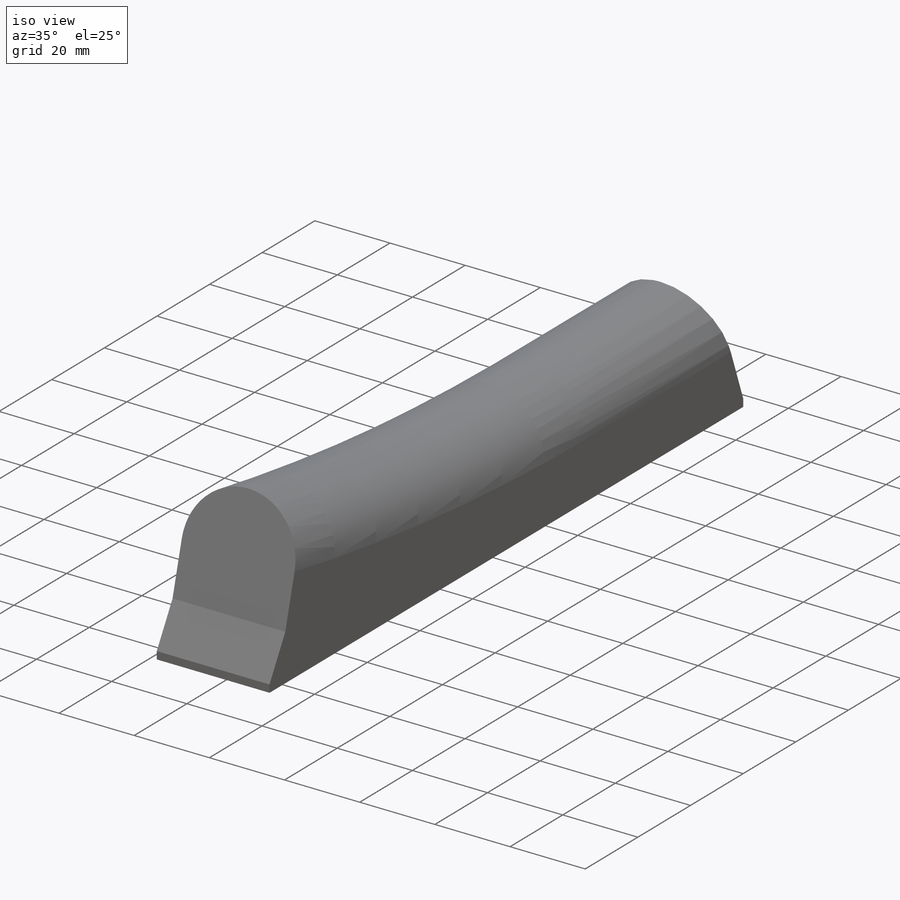
[diagram: iso view]
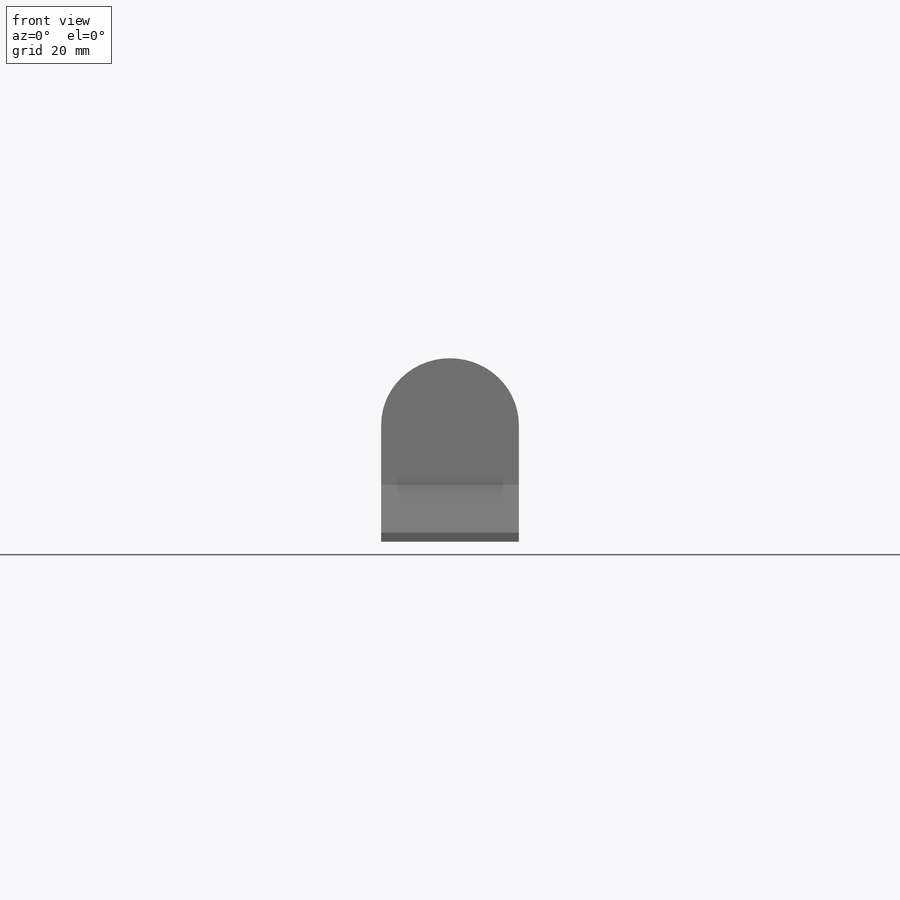
[diagram: front view]
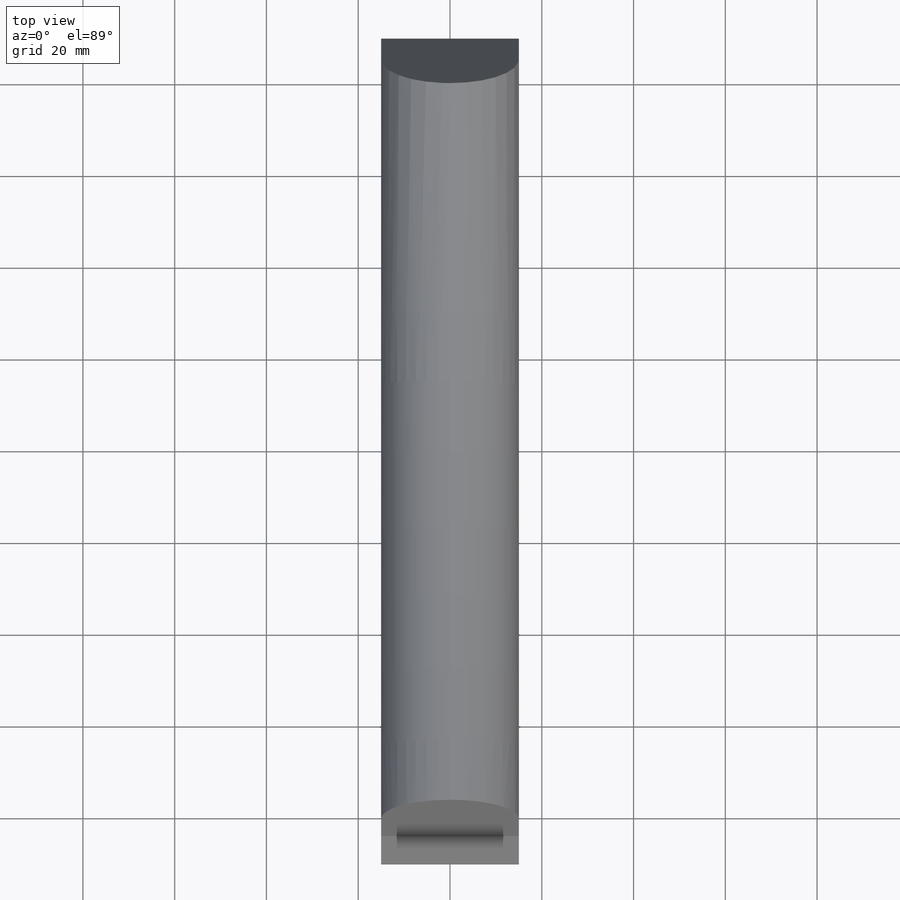
[diagram: top view]
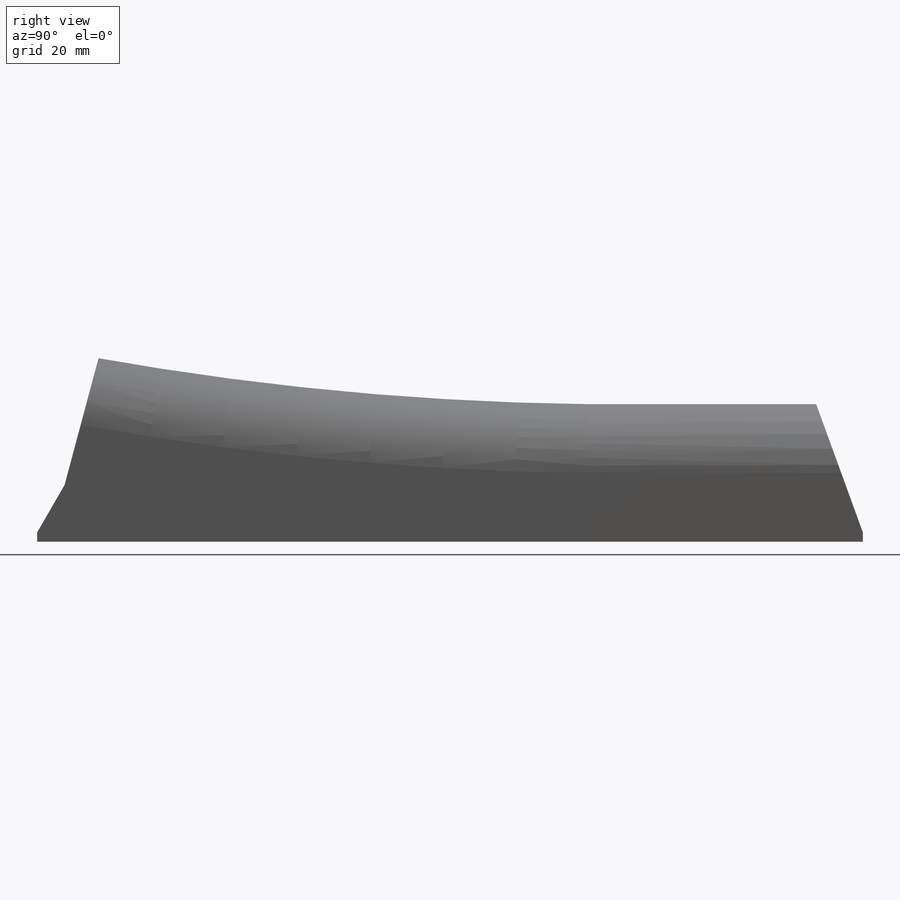
[diagram: right view]
SOLIDWORKS PART (.sldprt)
format: sldprt  version: not decoded by parser v0  size: 223,744 bytes
history: native  units: mm
features: plane x4, sketch x3, cut_extrude x2, material x1, extrude x1, fillet x1 (+8 scaffold rows collapsed)
feature tree (20):
  scaffold x8  (default folders/planes/origin — collapsed)
  material  "Material <nicht festgelegt>"
  plane  "Ebene vorne"
  plane  "Ebene oben"
  plane  "Ebene rechts"
  sketch  "Skizze1"  dims[D1=30.0mm D2=180.0mm]
  extrude  "Grundkörper"  Depth=40mm
  plane  "Ebene1"  Offset=15mm
  sketch  "Skizze2"  dims[c1.D1=12.0mm c1.D2=180.0mm c2.D2=60.0deg c2.D3=~16.963069mm c3.D3=75.0deg c3.D4=2.0mm c3.D5=~33.853196mm c4.D5=70.0deg c4.D6=2.0mm]
  cut_extrude  "Winkel-Winkel"  [1 undecoded]
  sketch  "Skizze3"  dims[D2=650.0mm D1=30.0mm D3=50.0mm]
  cut_extrude  "Absenkung"  Depth=30mm
  fillet  "Verrundung1"  Radius=15mm
decode coverage: 6 of 7 modeling features carry decoded parameters
note: ~ marks probable driven/reference dimensions
note: 1 parameter value undecoded
note: suppression state not decoded; provenance and decode notes live in map.json
